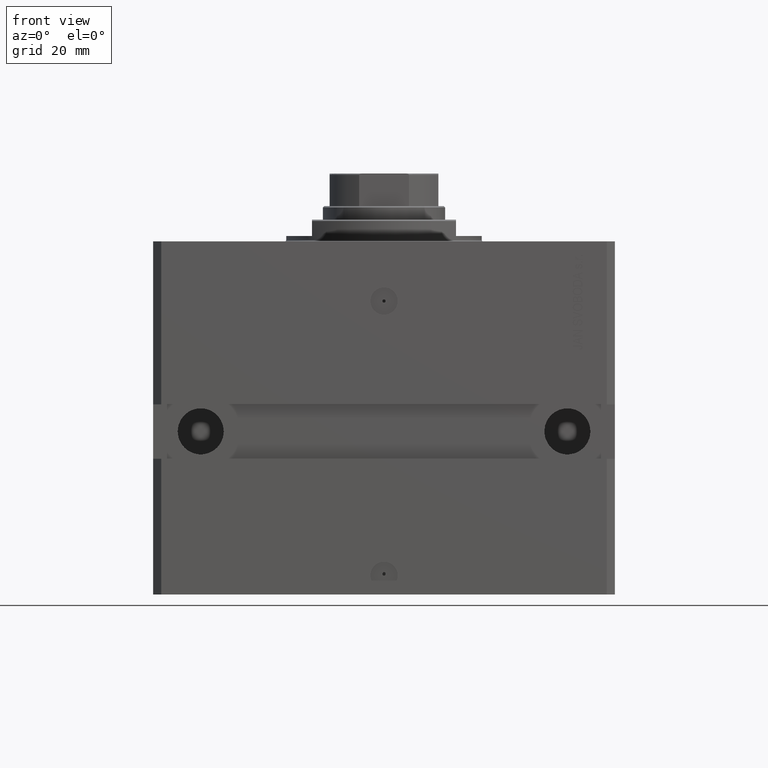
[diagram: clean part render]
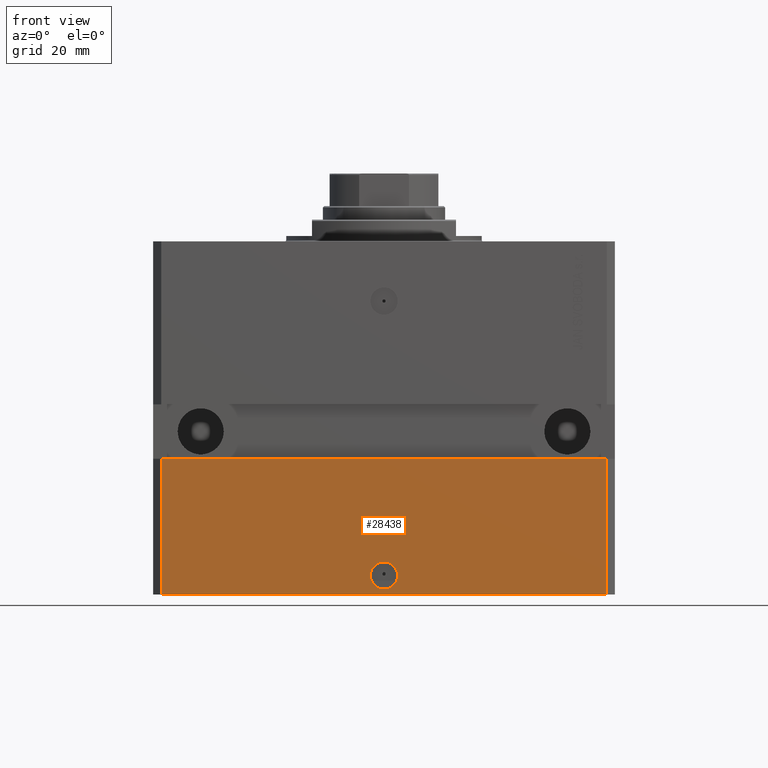
[diagram: same view with one face highlighted and labeled with its STEP entity id]
A machine part, front view. The second image highlights one B-rep face of the part: STEP entity #28438.
In plain terms, the highlighted planar face has unit normal (0, -1, 0).
Its self-contained STEP definition (entity closure, byte-faithful):
#462 = VERTEX_POINT ( 'NONE', #3399 ) ;
#1363 = EDGE_CURVE ( 'NONE', #28050, #462, #37907, .T. ) ;
#2805 = CARTESIAN_POINT ( 'NONE',  ( 0.000000000000000000, -70.00000000000000000, -123.0000000000000000 ) ) ;
#3399 = CARTESIAN_POINT ( 'NONE',  ( 82.00000000000001421, -70.00000000000000000, -130.0000000000000000 ) ) ;
#6258 = DIRECTION ( 'NONE',  ( 1.000000000000000000, 0.000000000000000000, 0.000000000000000000 ) ) ;
#6640 = VERTEX_POINT ( 'NONE', #44768 ) ;
#7102 = VECTOR ( 'NONE', #7335, 1000.000000000000000 ) ;
#7335 = DIRECTION ( 'NONE',  ( 0.000000000000000000, 0.000000000000000000, 1.000000000000000000 ) ) ;
#10063 = EDGE_CURVE ( 'NONE', #40778, #27929, #38531, .T. ) ;
#12376 = ORIENTED_EDGE ( 'NONE', *, *, #21504, .T. ) ;
#12427 = LINE ( 'NONE', #38874, #32198 ) ;
#15294 = AXIS2_PLACEMENT_3D ( 'NONE', #39764, #29103, #31879 ) ;
#16877 = DIRECTION ( 'NONE',  ( 1.176083712526788232E-16, -1.000000000000000000, 0.000000000000000000 ) ) ;
#17893 = CARTESIAN_POINT ( 'NONE',  ( -82.00000000000001421, -70.00000000000000000, -130.0000000000000000 ) ) ;
#18047 = DIRECTION ( 'NONE',  ( 0.000000000000000000, 0.000000000000000000, 1.000000000000000000 ) ) ;
#18134 = VECTOR ( 'NONE', #18047, 1000.000000000000000 ) ;
#18258 = PLANE ( 'NONE',  #15294 ) ;
#19056 = EDGE_LOOP ( 'NONE', ( #45530, #43493 ) ) ;
#20246 = CIRCLE ( 'NONE', #27549, 5.000000000000006217 ) ;
#21123 = EDGE_CURVE ( 'NONE', #28050, #34416, #43638, .T. ) ;
#21239 = EDGE_CURVE ( 'NONE', #34416, #6640, #12427, .T. ) ;
#21504 = EDGE_CURVE ( 'NONE', #462, #6640, #28332, .T. ) ;
#23260 = DIRECTION ( 'NONE',  ( 1.000000000000000000, 1.632680918566406300E-16, 0.000000000000000000 ) ) ;
#27549 = AXIS2_PLACEMENT_3D ( 'NONE', #2805, #16877, #34443 ) ;
#27829 = DIRECTION ( 'NONE',  ( 1.000000000000000000, 0.000000000000000000, 0.000000000000000000 ) ) ;
#27929 = VERTEX_POINT ( 'NONE', #41958 ) ;
#28050 = VERTEX_POINT ( 'NONE', #17893 ) ;
#28150 = CARTESIAN_POINT ( 'NONE',  ( -5.000000000000006217, -70.00000000000000000, -123.0000000000000000 ) ) ;
#28183 = FACE_OUTER_BOUND ( 'NONE', #39829, .T. ) ;
#28332 = LINE ( 'NONE', #42457, #7102 ) ;
#28438 = ADVANCED_FACE ( 'NONE', ( #39539, #28183 ), #18258, .T. ) ;
#29103 = DIRECTION ( 'NONE',  ( 0.000000000000000000, -1.000000000000000000, 0.000000000000000000 ) ) ;
#29521 = CARTESIAN_POINT ( 'NONE',  ( -82.00000000000001421, -70.00000000000000000, -130.0000000000000000 ) ) ;
#31879 = DIRECTION ( 'NONE',  ( 0.000000000000000000, -0.000000000000000000, -1.000000000000000000 ) ) ;
#32198 = VECTOR ( 'NONE', #23260, 1000.000000000000000 ) ;
#34416 = VERTEX_POINT ( 'NONE', #41265 ) ;
#34443 = DIRECTION ( 'NONE',  ( 1.000000000000000000, 0.000000000000000000, 0.000000000000000000 ) ) ;
#36158 = EDGE_CURVE ( 'NONE', #27929, #40778, #20246, .T. ) ;
#37214 = ORIENTED_EDGE ( 'NONE', *, *, #21123, .F. ) ;
#37907 = LINE ( 'NONE', #44855, #44796 ) ;
#38112 = ORIENTED_EDGE ( 'NONE', *, *, #1363, .T. ) ;
#38531 = CIRCLE ( 'NONE', #40734, 5.000000000000006217 ) ;
#38874 = CARTESIAN_POINT ( 'NONE',  ( -85.00000000000001421, -70.00000000000001421, -80.00000000000001421 ) ) ;
#39539 = FACE_BOUND ( 'NONE', #19056, .T. ) ;
#39764 = CARTESIAN_POINT ( 'NONE',  ( -82.00000000000001421, -70.00000000000000000, -130.0000000000000000 ) ) ;
#39829 = EDGE_LOOP ( 'NONE', ( #43398, #37214, #38112, #12376 ) ) ;
#40734 = AXIS2_PLACEMENT_3D ( 'NONE', #45177, #45409, #27829 ) ;
#40778 = VERTEX_POINT ( 'NONE', #28150 ) ;
#41265 = CARTESIAN_POINT ( 'NONE',  ( -82.00000000000000000, -70.00000000000001421, -80.00000000000001421 ) ) ;
#41958 = CARTESIAN_POINT ( 'NONE',  ( 5.000000000000006217, -70.00000000000000000, -123.0000000000000000 ) ) ;
#42457 = CARTESIAN_POINT ( 'NONE',  ( 82.00000000000001421, -70.00000000000000000, -130.0000000000000000 ) ) ;
#43398 = ORIENTED_EDGE ( 'NONE', *, *, #21239, .F. ) ;
#43493 = ORIENTED_EDGE ( 'NONE', *, *, #10063, .F. ) ;
#43638 = LINE ( 'NONE', #29521, #18134 ) ;
#44768 = CARTESIAN_POINT ( 'NONE',  ( 82.00000000000001421, -69.99999999999998579, -80.00000000000001421 ) ) ;
#44796 = VECTOR ( 'NONE', #6258, 1000.000000000000000 ) ;
#44855 = CARTESIAN_POINT ( 'NONE',  ( -82.00000000000001421, -70.00000000000000000, -130.0000000000000000 ) ) ;
#45177 = CARTESIAN_POINT ( 'NONE',  ( 0.000000000000000000, -70.00000000000000000, -123.0000000000000000 ) ) ;
#45409 = DIRECTION ( 'NONE',  ( 1.176083712526788232E-16, -1.000000000000000000, 0.000000000000000000 ) ) ;
#45530 = ORIENTED_EDGE ( 'NONE', *, *, #36158, .F. ) ;